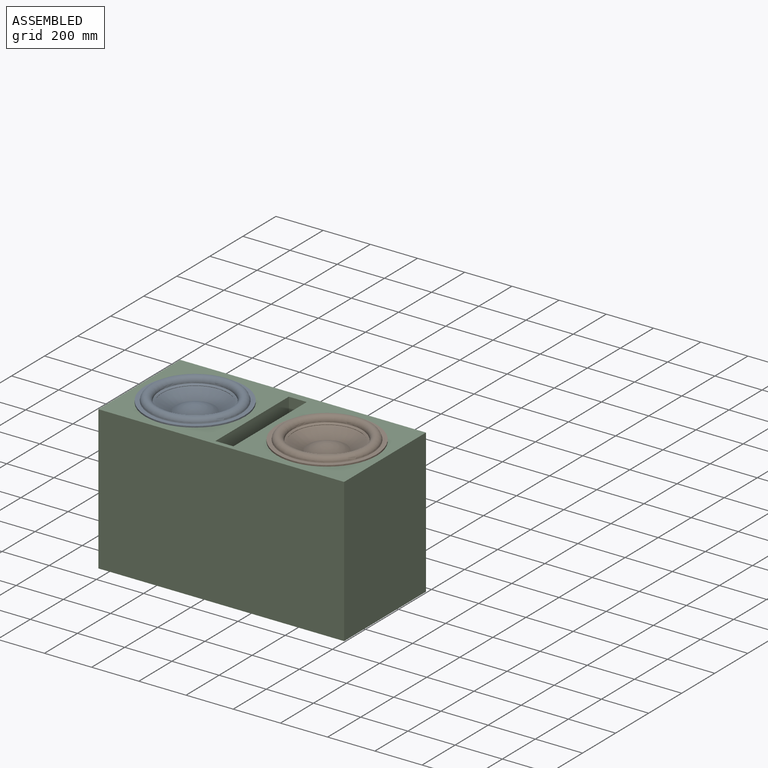
[diagram: assembled view]
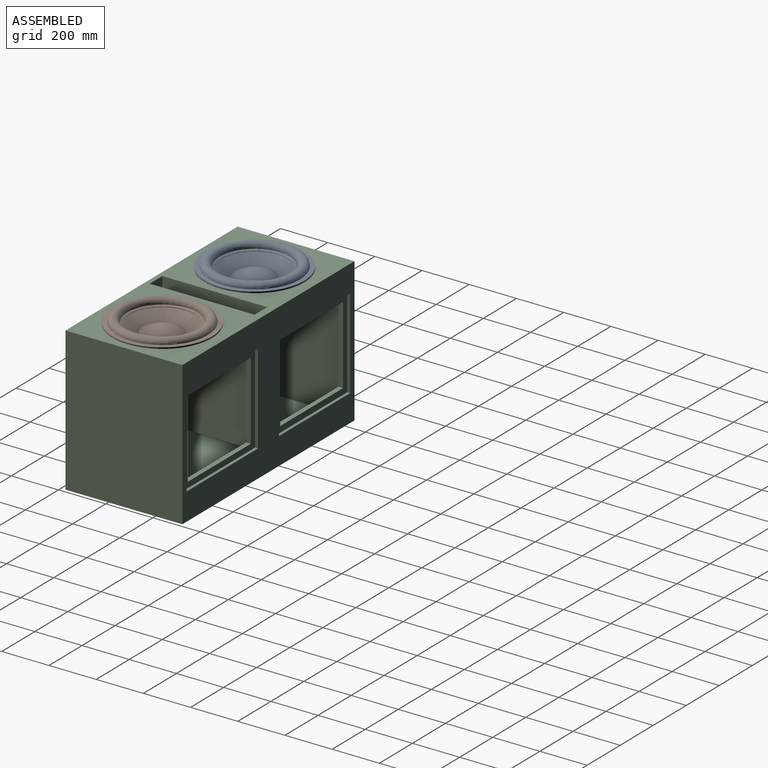
[diagram: assembled view, second angle]
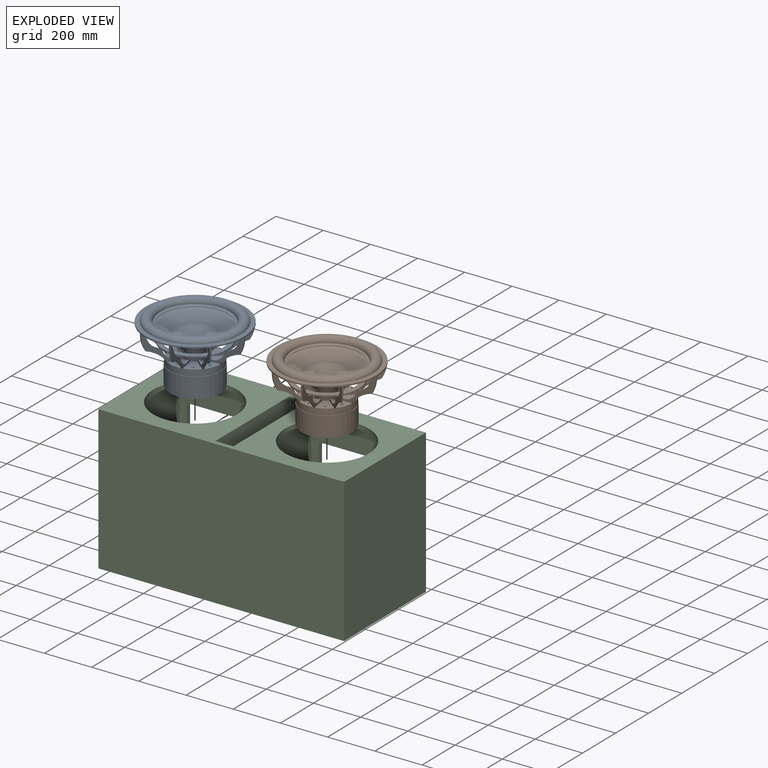
[diagram: exploded view]
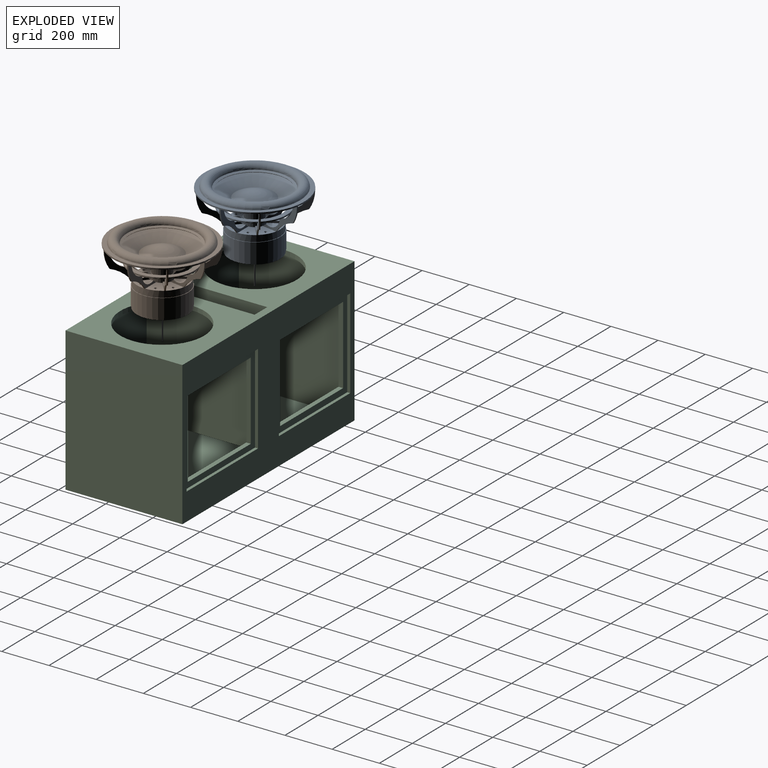
[diagram: exploded view, second angle]
ASSEMBLY  parts=3 mates=2
PART A: 207 faces, bbox 421.2x421.2x277.4 mm
  f0: plane 3x0.04mm, normal (0,0,-1), area 0mm2, adj f5,f12,f135
  f1: plane 3x0.02mm, normal (0,0,1), area 0mm2, adj f6,f12,f166
  f2: plane 3x0.03mm, normal (0,0,1), area 0mm2, adj f8,f12,f172
  f3: plane 3x0.03mm, normal (0,0,1), area 0mm2, adj f8,f11,f172
  f4: plane 3x0.04mm, normal (0,0,-1), area 0mm2, adj f5,f11,f135
  f5: cylinder r=144.75mm len=82.46mm, axis (0,1,0), area 619.3mm2, adj f0,f4,f6,f11,f12
  f6: cylinder r=131.57mm len=69.95mm, axis (0,1,0), area 442.5mm2, adj f1,f5,f7,f11,f12
  f7: plane 3x0.02mm, normal (0,0,1), area 0mm2, adj f6,f11,f166
  f8: cylinder r=72.45mm len=69.95mm, axis (0,1,0), area 568.4mm2, adj f2,f3,f11,f12,f13,f14
  f9: cylinder r=50.08mm len=68.95mm, axis (0,1,0), area 588.1mm2, adj f10,f11,f12,f15
  f10: plane 15.25x12mm, normal (-0.62,0,0.79), area 116.4mm2, adj f9,f11,f12,f16,f136
  f11: plane 167.8x128.34mm, normal (0,-1,0), area 3828.2mm2, adj f3,f4,f5,f6,f7,f8,f9,f10
  f12: plane 167.8x128.34mm, normal (0,1,0), area 3828.2mm2, adj f0,f1,f2,f5,f6,f8,f9,f10
  f13: plane 133.06x64.57mm, normal (0,0,-1), area 2680.9mm2, adj f8,f12,f25,f28,f165,f166
  f14: plane 133.06x64.57mm, normal (0,0,-1), area 2680.9mm2, adj f8,f11,f130,f134,f165,f166
  f15: plane 274x273.97mm, normal (0,0,-1), area 15419.9mm2, adj f9,f11,f12,f26,f28,f29,f41,f43
  f16: plane 75.17x67.1mm, normal (0,0,1), area 2941.6mm2, adj f10,f12,f27,f28,f135,f137,f155
  f17: plane 2.3x1.96mm, normal (0,0,-1), area 0mm2, adj f22,f29,f135
  f18: plane 2.3x1.94mm, normal (0,0,1), area 0mm2, adj f23,f29,f166
  f19: plane 2.3x1.95mm, normal (0,0,1), area 0mm2, adj f25,f29,f172
  f20: plane 2.32x1.93mm, normal (0,0,1), area 0mm2, adj f25,f28,f172
  f21: plane 2.33x1.93mm, normal (0,0,-1), area 0mm2, adj f22,f28,f135
  f22: cylinder r=144.75mm len=67.03mm, axis (-0.64,0.77,0), area 619.3mm2, adj f17,f21,f23,f28,f29
  f23: cylinder r=131.57mm len=69.95mm, axis (-0.64,0.77,0), area 442.5mm2, adj f18,f22,f24,f28,f29
  f24: plane 2.31x1.93mm, normal (0,0,1), area 0mm2, adj f23,f28,f166
  f25: cylinder r=72.45mm len=69.95mm, axis (-0.64,0.77,0), area 568.4mm2, adj f13,f19,f20,f28,f29,f30
  f26: cylinder r=50.08mm len=56.68mm, axis (-0.64,0.77,0), area 588.1mm2, adj f15,f27,f28,f29
  f27: plane 15.54x14.4mm, normal (-0.47,-0.4,0.79), area 116.4mm2, adj f16,f26,f28,f29,f31
  f28: plane 128.54x128.34mm, normal (0.64,-0.77,0), area 3828.2mm2, adj f13,f15,f16,f20,f21,f22,f23,f24
  f29: plane 128.54x128.34mm, normal (-0.64,0.77,0), area 3828.2mm2, adj f15,f17,f18,f19,f22,f23,f25,f26
  f30: plane 126.29x84.34mm, normal (0,0,-1), area 2680.9mm2, adj f25,f29,f40,f43,f165,f166
  f31: plane 78.29x73.34mm, normal (0,0,1), area 2941.6mm2, adj f27,f29,f42,f43,f135,f137,f164
  f32: plane 2.96x0.52mm, normal (0,0,-1), area 0mm2, adj f37,f44,f135
  f33: plane 2.96x0.52mm, normal (0,0,1), area 0mm2, adj f38,f44,f166
  f34: plane 2.96x0.52mm, normal (0,0,1), area 0mm2, adj f40,f44,f172
  f35: plane 2.95x0.55mm, normal (0,0,1), area 0mm2, adj f40,f43,f172
  f36: plane 2.95x0.56mm, normal (0,0,-1), area 0mm2, adj f37,f43,f135
  f37: cylinder r=144.75mm len=82.25mm, axis (-0.98,0.17,0), area 619.3mm2, adj f32,f36,f38,f43,f44
  f38: cylinder r=131.57mm len=69.95mm, axis (-0.98,0.17,0), area 442.5mm2, adj f33,f37,f39,f43,f44
  f39: plane 2.95x0.54mm, normal (0,0,1), area 0mm2, adj f38,f43,f166
  f40: cylinder r=72.45mm len=69.95mm, axis (-0.98,0.17,0), area 568.4mm2, adj f30,f34,f35,f43,f44,f45
  f41: cylinder r=50.08mm len=68.94mm, axis (-0.98,0.17,0), area 588.1mm2, adj f15,f42,f43,f44
  f42: plane 16.06x12mm, normal (-0.11,-0.61,0.79), area 116.4mm2, adj f31,f41,f43,f44,f46
  f43: plane 165.25x128.34mm, normal (0.98,-0.17,0), area 3828.2mm2, adj f15,f30,f31,f35,f36,f37,f38,f39
  f44: plane 165.25x128.34mm, normal (-0.98,0.17,0), area 3828.2mm2, adj f15,f32,f33,f34,f37,f38,f40,f41
  f45: plane 136.3x45.54mm, normal (0,0,-1), area 2680.9mm2, adj f40,f44,f55,f58,f165,f166
  f46: plane 70.93x67.17mm, normal (0,0,1), area 2941.6mm2, adj f42,f44,f57,f58,f135,f137,f158
  f47: plane 2.6x1.54mm, normal (0,0,-1), area 0mm2, adj f52,f59,f135
  f48: plane 2.6x1.52mm, normal (0,0,1), area 0mm2, adj f53,f59,f166
  f49: plane 2.6x1.53mm, normal (0,0,1), area 0mm2, adj f55,f59,f172
  f50: plane 2.61x1.5mm, normal (0,0,1), area 0mm2, adj f55,f58,f172
  f51: plane 2.62x1.5mm, normal (0,0,-1), area 0mm2, adj f52,f58,f135
  f52: cylinder r=144.75mm len=74.41mm, axis (-0.87,-0.5,0), area 619.3mm2, adj f47,f51,f53,f58,f59
  f53: cylinder r=131.57mm len=69.95mm, axis (-0.87,-0.5,0), area 442.5mm2, adj f48,f52,f54,f58,f59
  f54: plane 2.61x1.5mm, normal (0,0,1), area 0mm2, adj f53,f58,f166
  f55: cylinder r=72.45mm len=69.95mm, axis (-0.87,-0.5,0), area 568.4mm2, adj f45,f49,f50,f58,f59,f60
  f56: cylinder r=50.08mm len=62.71mm, axis (-0.87,-0.5,0), area 588.1mm2, adj f15,f57,f58,f59
  f57: plane 16.21x12.82mm, normal (0.31,-0.54,0.79), area 116.4mm2, adj f46,f56,f58,f59,f61
  f58: plane 145.32x128.34mm, normal (0.87,0.5,0), area 3828.2mm2, adj f15,f45,f46,f50,f51,f52,f53,f54
  f59: plane 145.32x128.34mm, normal (-0.87,-0.5,0), area 3828.2mm2, adj f15,f47,f48,f49,f52,f53,f55,f56
  f60: plane 115.68x101.55mm, normal (0,0,-1), area 2680.9mm2, adj f55,f59,f70,f73,f165,f166
  f61: plane 79.02x77.36mm, normal (0,0,1), area 2941.6mm2, adj f57,f59,f72,f73,f135,f137,f161
  f62: plane 2.83x1.03mm, normal (0,0,-1), area 0mm2, adj f67,f74,f135
  f63: plane 2.83x1.03mm, normal (0,0,1), area 0mm2, adj f68,f74,f166
  f64: plane 2.83x1.03mm, normal (0,0,1), area 0mm2, adj f70,f74,f172
  f65: plane 2.82x1.06mm, normal (0,0,1), area 0mm2, adj f70,f73,f172
  f66: plane 2.82x1.07mm, normal (0,0,-1), area 0mm2, adj f67,f73,f135
  f67: cylinder r=144.75mm len=79.54mm, axis (-0.34,-0.94,0), area 619.3mm2, adj f62,f66,f68,f73,f74
  f68: cylinder r=131.57mm len=69.95mm, axis (-0.34,-0.94,0), area 442.5mm2, adj f63,f67,f69,f73,f74
  f69: plane 2.82x1.05mm, normal (0,0,1), area 0mm2, adj f68,f73,f166
  f70: cylinder r=72.45mm len=69.95mm, axis (-0.34,-0.94,0), area 568.4mm2, adj f60,f64,f65,f73,f74,f75
  f71: cylinder r=50.08mm len=66.84mm, axis (-0.34,-0.94,0), area 588.1mm2, adj f15,f72,f73,f74
  f72: plane 16.38x12mm, normal (0.58,-0.21,0.79), area 116.4mm2, adj f61,f71,f73,f74,f76
  f73: plane 157.68x128.34mm, normal (0.34,0.94,0), area 3828.2mm2, adj f15,f60,f61,f65,f66,f67,f68,f69
  f74: plane 157.68x128.34mm, normal (-0.34,-0.94,0), area 3828.2mm2, adj f15,f62,f63,f64,f67,f68,f70,f71
  f75: plane 138.41x31.49mm, normal (0,0,-1), area 2680.9mm2, adj f70,f74,f85,f88,f165,f166
  f76: plane 68.21x67.78mm, normal (0,0,1), area 2941.6mm2, adj f72,f74,f87,f88,f135,f137,f140
  f77: plane 2.82x1.07mm, normal (0,0,-1), area 0mm2, adj f82,f89,f135
  f78: plane 2.82x1.05mm, normal (0,0,1), area 0mm2, adj f83,f89,f166
  f79: plane 2.82x1.06mm, normal (0,0,1), area 0mm2, adj f85,f89,f172
  f80: plane 2.83x1.03mm, normal (0,0,1), area 0mm2, adj f85,f88,f172
  f81: plane 2.83x1.03mm, normal (0,0,-1), area 0mm2, adj f82,f88,f135
  f82: cylinder r=144.75mm len=79.54mm, axis (0.34,-0.94,0), area 619.3mm2, adj f77,f81,f83,f88,f89
  f83: cylinder r=131.57mm len=69.95mm, axis (0.34,-0.94,0), area 442.5mm2, adj f78,f82,f84,f88,f89
  f84: plane 2.83x1.03mm, normal (0,0,1), area 0mm2, adj f83,f88,f166
  f85: cylinder r=72.45mm len=69.95mm, axis (0.34,-0.94,0), area 568.4mm2, adj f75,f79,f80,f88,f89,f90
  f86: cylinder r=50.08mm len=66.84mm, axis (0.34,-0.94,0), area 588.1mm2, adj f15,f87,f88,f89
  f87: plane 16.38x12mm, normal (0.58,0.21,0.79), area 116.4mm2, adj f76,f86,f88,f89,f91
  f88: plane 157.68x128.34mm, normal (-0.34,0.94,0), area 3828.2mm2, adj f15,f75,f76,f80,f81,f82,f83,f84
  f89: plane 157.68x128.34mm, normal (0.34,-0.94,0), area 3828.2mm2, adj f15,f77,f78,f79,f82,f83,f85,f86
  f90: plane 115.68x101.55mm, normal (0,0,-1), area 2680.9mm2, adj f85,f89,f100,f103,f165,f166
  f91: plane 79.02x77.36mm, normal (0,0,1), area 2941.6mm2, adj f87,f89,f102,f103,f135,f137,f152
  f92: plane 2.62x1.5mm, normal (0,0,-1), area 0mm2, adj f97,f104,f135
  f93: plane 2.61x1.5mm, normal (0,0,1), area 0mm2, adj f98,f104,f166
  f94: plane 2.61x1.5mm, normal (0,0,1), area 0mm2, adj f100,f104,f172
  f95: plane 2.6x1.53mm, normal (0,0,1), area 0mm2, adj f100,f103,f172
  f96: plane 2.6x1.54mm, normal (0,0,-1), area 0mm2, adj f97,f103,f135
  f97: cylinder r=144.75mm len=74.41mm, axis (0.87,-0.5,0), area 619.3mm2, adj f92,f96,f98,f103,f104
  f98: cylinder r=131.57mm len=69.95mm, axis (0.87,-0.5,0), area 442.5mm2, adj f93,f97,f99,f103,f104
  f99: plane 2.6x1.52mm, normal (0,0,1), area 0mm2, adj f98,f103,f166
  f100: cylinder r=72.45mm len=69.95mm, axis (0.87,-0.5,0), area 568.4mm2, adj f90,f94,f95,f103,f104,f105
  f101: cylinder r=50.08mm len=62.71mm, axis (0.87,-0.5,0), area 588.1mm2, adj f15,f102,f103,f104
  f102: plane 16.21x12.82mm, normal (0.31,0.54,0.79), area 116.4mm2, adj f91,f101,f103,f104,f106
  f103: plane 145.32x128.34mm, normal (-0.87,0.5,0), area 3828.2mm2, adj f15,f90,f91,f95,f96,f97,f98,f99
  f104: plane 145.32x128.34mm, normal (0.87,-0.5,0), area 3828.2mm2, adj f15,f92,f93,f94,f97,f98,f100,f101
  f105: plane 136.3x45.54mm, normal (0,0,-1), area 2680.9mm2, adj f100,f104,f115,f118,f165,f166
  f106: plane 70.93x67.17mm, normal (0,0,1), area 2941.6mm2, adj f102,f104,f117,f118,f135,f137,f149
  f107: plane 2.95x0.56mm, normal (0,0,-1), area 0mm2, adj f112,f119,f135
  f108: plane 2.95x0.54mm, normal (0,0,1), area 0mm2, adj f113,f119,f166
  f109: plane 2.95x0.55mm, normal (0,0,1), area 0mm2, adj f115,f119,f172
  f110: plane 2.96x0.52mm, normal (0,0,1), area 0mm2, adj f115,f118,f172
  f111: plane 2.96x0.52mm, normal (0,0,-1), area 0mm2, adj f112,f118,f135
  f112: cylinder r=144.75mm len=82.25mm, axis (0.98,0.17,0), area 619.3mm2, adj f107,f111,f113,f118,f119
  f113: cylinder r=131.57mm len=69.95mm, axis (0.98,0.17,0), area 442.5mm2, adj f108,f112,f114,f118,f119
  f114: plane 2.96x0.52mm, normal (0,0,1), area 0mm2, adj f113,f118,f166
  f115: cylinder r=72.45mm len=69.95mm, axis (0.98,0.17,0), area 568.4mm2, adj f105,f109,f110,f118,f119,f121
  f116: cylinder r=50.08mm len=68.94mm, axis (0.98,0.17,0), area 588.1mm2, adj f15,f117,f118,f119
  f117: plane 16.06x12mm, normal (-0.11,0.61,0.79), area 116.4mm2, adj f106,f116,f118,f119,f120
  f118: plane 165.25x128.34mm, normal (-0.98,-0.17,0), area 3828.2mm2, adj f15,f105,f106,f110,f111,f112,f113,f114
  f119: plane 165.25x128.34mm, normal (0.98,0.17,0), area 3828.2mm2, adj f15,f107,f108,f109,f112,f113,f115,f116
  f120: plane 78.29x73.34mm, normal (0,0,1), area 2941.6mm2, adj f117,f119,f132,f133,f135,f137,f146
  f121: plane 126.29x84.34mm, normal (0,0,-1), area 2680.9mm2, adj f115,f119,f130,f133,f165,f166
  f122: plane 2.32x1.93mm, normal (0,0,1), area 0mm2, adj f130,f134,f172
  f123: plane 2.3x1.95mm, normal (0,0,1), area 0mm2, adj f130,f133,f172
  f124: plane 2.31x1.93mm, normal (0,0,1), area 0mm2, adj f128,f134,f166
  f125: plane 2.33x1.93mm, normal (0,0,-1), area 0mm2, adj f127,f134,f135
  f126: plane 2.3x1.96mm, normal (0,0,-1), area 0mm2, adj f127,f133,f135
  f127: cylinder r=144.75mm len=67.03mm, axis (0.64,0.77,0), area 619.3mm2, adj f125,f126,f128,f133,f134
  f128: cylinder r=131.57mm len=69.95mm, axis (0.64,0.77,0), area 442.5mm2, adj f124,f127,f129,f133,f134
  f129: plane 2.3x1.94mm, normal (0,0,1), area 0mm2, adj f128,f133,f166
  f130: cylinder r=72.45mm len=69.95mm, axis (0.64,0.77,0), area 568.4mm2, adj f14,f121,f122,f123,f133,f134
  f131: cylinder r=50.08mm len=56.68mm, axis (0.64,0.77,0), area 588.1mm2, adj f15,f132,f133,f134
  f132: plane 15.54x14.4mm, normal (-0.47,0.4,0.79), area 116.4mm2, adj f120,f131,f133,f134,f136
  f133: plane 128.54x128.34mm, normal (-0.64,-0.77,0), area 3828.2mm2, adj f15,f120,f121,f123,f126,f127,f128,f129
  f134: plane 128.54x128.34mm, normal (0.64,0.77,0), area 3828.2mm2, adj f14,f15,f122,f124,f125,f127,f128,f130
  f135: cylinder r=108mm len=216mm, axis (0,0,-1), area 18321.8mm2, adj f0,f4,f16,f17,f21,f31,f32,f36
  f136: plane 75.17x67.1mm, normal (0,0,1), area 2941.6mm2, adj f10,f11,f132,f134,f135,f137,f143
  f137: cylinder r=42.8mm len=102mm, axis (0,0,-1), area 27429.9mm2, adj f16,f31,f46,f61,f76,f91,f106,f120
  f138: cylinder r=3.3mm len=6.6mm, axis (0,0,1), area 82.9mm2, adj f139,f187
  f139: plane 11.25x11.25mm, normal (0,0,1), area 65.2mm2, adj f138,f140
  f140: cylinder r=5.62mm len=11.25mm, axis (0,0,1), area 70.7mm2, adj f76,f139
  f141: cylinder r=3.3mm len=6.6mm, axis (0,0,1), area 82.9mm2, adj f142,f188
  f142: plane 11.25x11.25mm, normal (0,0,1), area 65.2mm2, adj f141,f143
  f143: cylinder r=5.62mm len=11.25mm, axis (0,0,1), area 70.7mm2, adj f136,f142
  f144: cylinder r=3.3mm len=6.6mm, axis (0,0,1), area 82.9mm2, adj f145,f189
  f145: plane 11.25x11.25mm, normal (0,0,1), area 65.2mm2, adj f144,f146
  f146: cylinder r=5.62mm len=11.25mm, axis (0,0,1), area 70.7mm2, adj f120,f145
  f147: cylinder r=3.3mm len=6.6mm, axis (0,0,1), area 82.9mm2, adj f148,f190
  f148: plane 11.25x11.25mm, normal (0,0,1), area 65.2mm2, adj f147,f149
  f149: cylinder r=5.62mm len=11.25mm, axis (0,0,1), area 70.7mm2, adj f106,f148
  f150: cylinder r=3.3mm len=6.6mm, axis (0,0,1), area 82.9mm2, adj f151,f191
  f151: plane 11.25x11.25mm, normal (0,0,1), area 65.2mm2, adj f150,f152
  f152: cylinder r=5.62mm len=11.25mm, axis (0,0,1), area 70.7mm2, adj f91,f151
  f153: cylinder r=3.3mm len=6.6mm, axis (0,0,1), area 82.9mm2, adj f154,f192
  f154: plane 11.25x11.25mm, normal (0,0,1), area 65.2mm2, adj f153,f155
  f155: cylinder r=5.62mm len=11.25mm, axis (0,0,1), area 70.7mm2, adj f16,f154
  f156: cylinder r=3.3mm len=6.6mm, axis (0,0,1), area 82.9mm2, adj f157,f193
  f157: plane 11.25x11.25mm, normal (0,0,1), area 65.2mm2, adj f156,f158
  f158: cylinder r=5.62mm len=11.25mm, axis (0,0,1), area 70.7mm2, adj f46,f157
  f159: cylinder r=3.3mm len=6.6mm, axis (0,0,1), area 82.9mm2, adj f160,f194
  f160: plane 11.25x11.25mm, normal (0,0,1), area 65.2mm2, adj f159,f161
  f161: cylinder r=5.62mm len=11.25mm, axis (0,0,1), area 70.7mm2, adj f61,f160
  f162: cylinder r=3.3mm len=6.6mm, axis (0,0,1), area 82.9mm2, adj f163,f195
  f163: plane 11.25x11.25mm, normal (0,0,1), area 65.2mm2, adj f162,f164
  f164: cylinder r=5.62mm len=11.25mm, axis (0,0,1), area 70.7mm2, adj f31,f163
  f165: cylinder r=190.6mm len=381.2mm, axis (0,0,-1), area 4790.3mm2, adj f13,f14,f30,f45,f60,f75,f90,f105
  f166: cylinder r=210.6mm len=421.2mm, axis (0,0,-1), area 7939.4mm2, adj f1,f7,f13,f14,f18,f24,f30,f33
  f167: plane 421.2x421.2mm, normal (0,0,1), area 22921.3mm2, adj f166,f168
  f168: torus R=170.53mm, axis (0,0,-1), area 72895.8mm2, adj f167,f169
  f169: cone r=139.64mm half-angle=62.4deg, axis (0,0,1), area 9052.5mm2, adj f168,f170
  f170: cone r=139.64mm half-angle=27.6deg, axis (0,0,-1), area 1760.6mm2, adj f169,f185
  f171: torus R=170.53mm, axis (0,0,-1), area 69734.7mm2, adj f165,f184
  f172: cylinder r=137mm len=274mm, axis (0,0,-1), area 5164.8mm2, adj f2,f3,f15,f19,f20,f34,f35,f49
  f173: plane 274x274mm, normal (0,0,1), area 15959.3mm2, adj f172,f174
  f174: cylinder r=117mm len=234mm, axis (0,0,-1), area 4410.8mm2, adj f15,f173
  f175: revolved ~160.18x160.18mm, area 21200.6mm2, adj f183
  f176: cylinder r=38.1mm len=127.34mm, axis (0,0,-1), area 30483.8mm2, adj f177,f181
  f177: plane 78.2x78.2mm, normal (0,0,1), area 242.5mm2, adj f176,f183
  f178: cylinder r=39.1mm len=78.2mm, axis (0,0,-1), area 11648.6mm2, adj f179,f182
  f179: plane 83.31x83.31mm, normal (0,0,1), area 648.5mm2, adj f178,f180
  f180: cylinder r=41.66mm len=83.31mm, axis (0,0,-1), area 20475.8mm2, adj f179,f181
  f181: plane 83.31x83.31mm, normal (0,0,-1), area 891mm2, adj f176,f180
  f182: cone r=150.6mm half-angle=62.4deg, axis (0,0,1), area 74986.7mm2, adj f178,f184
  f183: cone r=150.6mm half-angle=62.4deg, axis (0,0,1), area 17319.2mm2, adj f175,f177
  f184: cylinder r=150.6mm len=301.2mm, axis (0,0,-1), area 1601.7mm2, adj f171,f182
  f185: cone r=150.6mm half-angle=62.4deg, axis (0,0,1), area 46216.1mm2, adj f170,f186
  f186: sphere r=190.37mm, area 22207mm2, adj f185
  f187: plane 6.6x6.6mm, normal (0,0,1), area 34.2mm2, adj f138
  f188: plane 6.6x6.6mm, normal (0,0,1), area 34.2mm2, adj f141
  f189: plane 6.6x6.6mm, normal (0,0,1), area 34.2mm2, adj f144
  f190: plane 6.6x6.6mm, normal (0,0,1), area 34.2mm2, adj f147
  f191: plane 6.6x6.6mm, normal (0,0,1), area 34.2mm2, adj f150
  f192: plane 6.6x6.6mm, normal (0,0,1), area 34.2mm2, adj f153
  f193: plane 6.6x6.6mm, normal (0,0,1), area 34.2mm2, adj f156
  f194: plane 6.6x6.6mm, normal (0,0,1), area 34.2mm2, adj f159
  f195: plane 6.6x6.6mm, normal (0,0,1), area 34.2mm2, adj f162
  f196: plane 220x220mm, normal (0,0,1), area 1369.7mm2, adj f135,f198
  f197: plane 220x220mm, normal (0,0,-1), area 1369.7mm2, adj f198,f206
  f198: cylinder r=110mm len=220mm, axis (0,0,-1), area 51836.3mm2, adj f196,f197
  f199: plane 85.6x85.6mm, normal (0,0,1), area 1337mm2, adj f137,f200
  f200: cylinder r=37.5mm len=105.38mm, axis (0,0,-1), area 24828.6mm2, adj f199,f201
  f201: plane 75x75mm, normal (0,0,1), area 458.7mm2, adj f200,f202
  f202: torus R=20mm, axis (0,0,-1), area 3423.6mm2, adj f201,f203
  f203: cylinder r=20mm len=117mm, axis (0,0,-1), area 14702.7mm2, adj f202,f204
  f204: plane 166.11x166.11mm, normal (0,0,-1), area 20413.8mm2, adj f203,f205
  f205: cone r=108mm half-angle=67.6deg, axis (0,0,1), area 16198.1mm2, adj f204,f206
  f206: cylinder r=108mm len=216mm, axis (0,0,-1), area 7263.9mm2, adj f197,f205
PART B: same geometry as A
PART C: 43 faces, bbox 1041.4x495.3x609.6 mm
  f0: plane 431.81x381.82mm, normal (0,1,0), area 39067.4mm2, adj f13,f14,f15,f16,f30,f31,f32,f41
  f1: plane 1003.3x590.55mm, normal (0,1,0), area 556208.6mm2, adj f2,f4,f5,f7,f12,f21,f22,f23
  f2: plane 444.5x444.5mm, normal (0,0,-1), area 98265.6mm2, adj f1,f3,f5,f25,f26
  f3: plane 1003.3x590.55mm, normal (0,-1,0), area 304596.2mm2, adj f2,f4,f5,f7,f12,f13,f14,f15
  f4: plane 571.5x444.5mm, normal (-1,0,0), area 254031.7mm2, adj f1,f3,f12,f21
  f5: plane 571.5x444.5mm, normal (1,0,0), area 254031.7mm2, adj f1,f2,f3,f12
  f6: plane 431.8x381mm, normal (0,1,0), area 38709.6mm2, adj f17,f18,f19,f20,f33,f34,f35,f39
  f7: plane 1041.41x482.61mm, normal (0,0,1), area 270079.4mm2, adj f1,f3,f8,f9,f10,f22,f23,f24
  f8: plane 609.6x482.6mm, normal (1,0,0), area 294193mm2, adj f7,f10,f11,f38
  f9: plane 609.61x482.61mm, normal (-1,0,0), area 294193mm2, adj f7,f10,f11,f36
  f10: plane 1041.4x609.6mm, normal (0,-1,0), area 634837.4mm2, adj f7,f8,f9,f11
  f11: plane 1041.4x482.6mm, normal (0,0,-1), area 502579.6mm2, adj f8,f9,f10,f40
  f12: plane 1003.3x444.5mm, normal (0,0,1), area 445966.9mm2, adj f1,f3,f4,f5
  f13: plane 381x19.05mm, normal (0,0,1), area 7258mm2, adj f0,f3,f14,f16
  f14: plane 330.2x19.05mm, normal (1,0,0), area 6290.3mm2, adj f0,f3,f13,f15
  f15: plane 381x19.05mm, normal (0,0,-1), area 7258mm2, adj f0,f3,f14,f16
  f16: plane 330.2x19.05mm, normal (-1,0,0), area 6290.3mm2, adj f0,f3,f13,f15
  f17: plane 381x19.05mm, normal (0,0,1), area 7258mm2, adj f3,f6,f18,f20
  f18: plane 330.2x19.05mm, normal (1,0,0), area 6290.3mm2, adj f3,f6,f17,f19
  f19: plane 381x19.05mm, normal (0,0,-1), area 7258mm2, adj f3,f6,f18,f20
  f20: plane 330.2x19.05mm, normal (-1,0,0), area 6290.3mm2, adj f3,f6,f17,f19
  f21: plane 444.5x444.5mm, normal (0,0,-1), area 98265.6mm2, adj f1,f3,f4,f24,f28
  f22: plane 508x444.5mm, normal (-1,0,0), area 225806mm2, adj f1,f3,f7,f29
  f23: plane 508x444.5mm, normal (1,0,0), area 225806mm2, adj f1,f3,f7,f27
  f24: cylinder r=177.8mm len=355.6mm, axis (0,0,1), area 21281.7mm2, adj f7,f21
  f25: cylinder r=177.8mm len=355.6mm, axis (0,0,1), area 21281.7mm2, adj f2,f7
  f26: plane 488.95x444.5mm, normal (-1,0,0), area 217338.3mm2, adj f1,f2,f3,f27
  f27: plane 444.5x19.05mm, normal (0,0,-1), area 8467.7mm2, adj f1,f3,f23,f26
  f28: plane 488.95x444.5mm, normal (1,0,0), area 217338.3mm2, adj f1,f3,f21,f29
  f29: plane 444.5x19.05mm, normal (0,0,-1), area 8467.7mm2, adj f1,f3,f22,f28
  f30: plane 381.82x12.7mm, normal (1,0,0), area 4849.1mm2, adj f0,f31,f41,f42
  f31: plane 431.81x12.7mm, normal (0,0,1), area 5484mm2, adj f0,f30,f32,f42
  f32: plane 381.82x12.7mm, normal (-1,0,0), area 4849.1mm2, adj f0,f31,f41,f42
  f33: plane 431.8x12.7mm, normal (0,0,1), area 5483.9mm2, adj f6,f34,f39,f42
  f34: plane 381x12.7mm, normal (-1,0,0), area 4838.7mm2, adj f6,f33,f35,f42
  f35: plane 431.8x12.7mm, normal (0,0,-1), area 5483.9mm2, adj f6,f34,f39,f42
  f36: plane 609.61x12.71mm, normal (-1,0,0), area 7742mm2, adj f9,f37,f40,f42
  f37: plane 1041.4x12.71mm, normal (0,0,1), area 13225.7mm2, adj f7,f36,f38,f42
  f38: plane 609.6x12.7mm, normal (1,0,0), area 7742mm2, adj f8,f37,f40,f42
  f39: plane 381x12.7mm, normal (1,0,0), area 4838.7mm2, adj f6,f33,f35,f42
  f40: plane 1041.4x12.7mm, normal (0,0,-1), area 13225.7mm2, adj f11,f36,f38,f42
  f41: plane 431.81x12.7mm, normal (0,0,-1), area 5484mm2, adj f0,f30,f32,f42
  f42: plane 1041.4x609.6mm, normal (0,1,0), area 305449mm2, adj f30,f31,f32,f33,f34,f35,f36,f37
PLACE A t=(219.24,1684.69,-993.78)mm
PLACE B t=(778.04,1684.69,-993.78)mm
PLACE C t=(498.64,1684.69,-1170.24)mm
MATE fastened A.f135 <-> C.f25  axis (0,0,1) through (219.24,1684.69,-865.44)mm
MATE fastened B.f135 <-> C.f24  axis (0,0,1) through (778.04,1684.69,-865.44)mm
